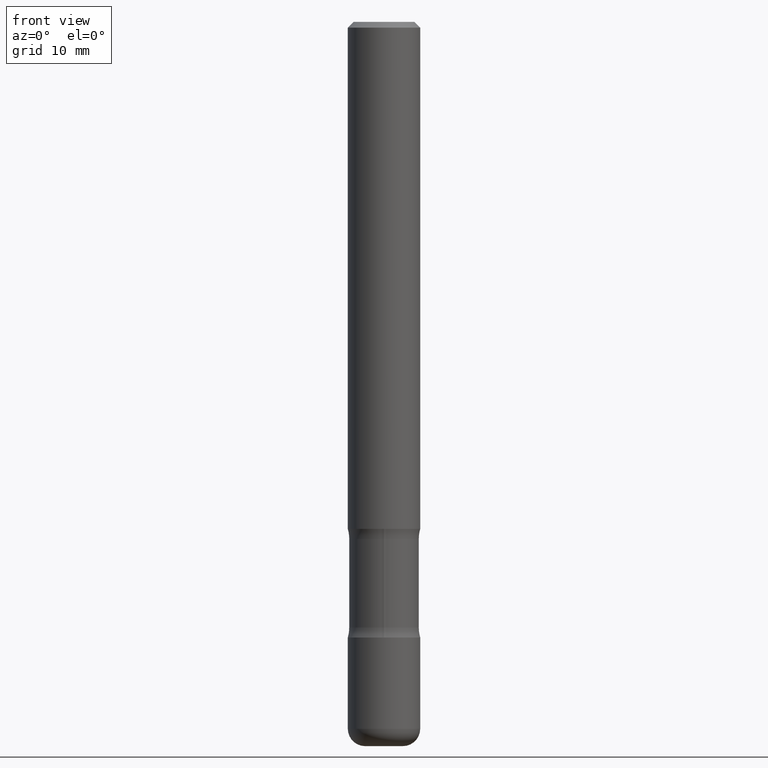
[diagram: clean part render]
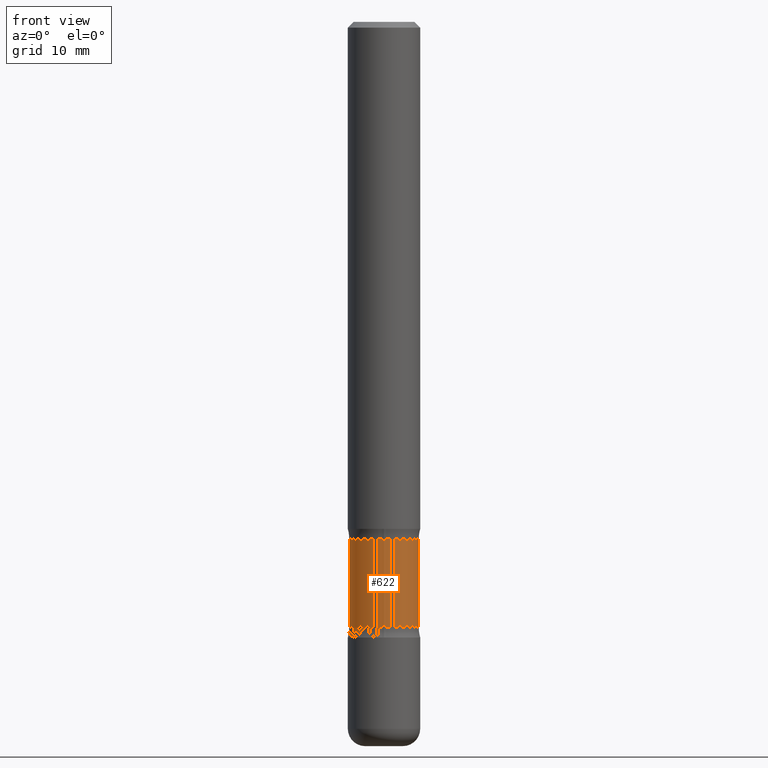
[diagram: same view with one face highlighted and labeled with its STEP entity id]
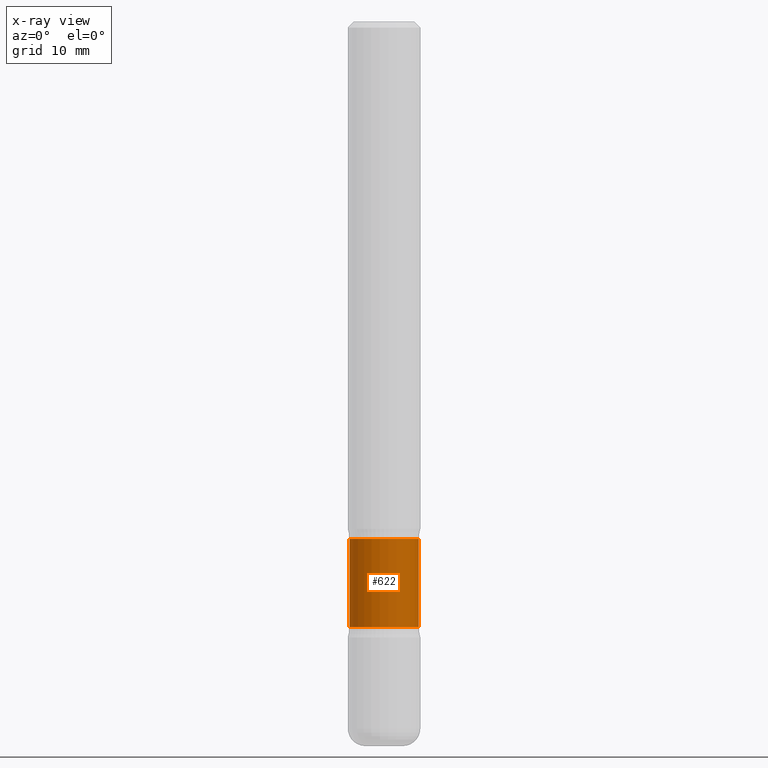
[diagram: x-ray of the same camera — body ghosted, the highlighted face saturated]
A machine part, front view. The second image highlights one B-rep face of the part: STEP entity #622.
The next image is the same camera in x-ray: the body ghosted, the highlighted face saturated — about 0% of this face is hidden behind the body in this view.
In plain terms, the highlighted cylindrical surface (edge-blend (fillet) strip) has radius 3.048 mm, axis along (-0, 0, 1).
Its self-contained STEP definition (entity closure, byte-faithful):
#11 = CARTESIAN_POINT ( 'NONE',  ( 0.1199999999999996764, -8.135151519504520597E-15, -2.089999999999998526 ) ) ;
#18 = CARTESIAN_POINT ( 'NONE',  ( 0.1199999999999996764, -7.070249711157368710E-15, -1.785000000000001252 ) ) ;
#22 = EDGE_CURVE ( 'NONE', #524, #59, #586, .T. ) ;
#42 = DIRECTION ( 'NONE',  ( -2.445468806185136597E-29, 3.491481338843145583E-15, 1.000000000000000000 ) ) ;
#59 = VERTEX_POINT ( 'NONE', #18 ) ;
#79 = DIRECTION ( 'NONE',  ( -2.445468806185136597E-29, 3.491481338843145583E-15, 1.000000000000000000 ) ) ;
#82 = EDGE_CURVE ( 'NONE', #459, #524, #528, .T. ) ;
#90 = LINE ( 'NONE', #741, #541 ) ;
#117 = EDGE_CURVE ( 'NONE', #578, #59, #260, .T. ) ;
#132 = CARTESIAN_POINT ( 'NONE',  ( -0.1199999999999996764, -6.487882070305806315E-15, -2.089999999999998526 ) ) ;
#145 = CARTESIAN_POINT ( 'NONE',  ( 0.1199999999999996764, -6.948047864297855572E-15, -1.750000000000000222 ) ) ;
#150 = CYLINDRICAL_SURFACE ( 'NONE', #457, 0.1199999999999996764 ) ;
#156 = DIRECTION ( 'NONE',  ( -2.445468806185136597E-29, 3.491481338843145583E-15, 1.000000000000000000 ) ) ;
#157 = DIRECTION ( 'NONE',  ( 1.000000000000000000, -6.982962677686261977E-15, 0.000000000000000000 ) ) ;
#193 = ORIENTED_EDGE ( 'NONE', *, *, #22, .T. ) ;
#244 = ORIENTED_EDGE ( 'NONE', *, *, #268, .F. ) ;
#260 = CIRCLE ( 'NONE', #273, 0.1199999999999996764 ) ;
#268 = EDGE_CURVE ( 'NONE', #459, #578, #90, .T. ) ;
#271 = FACE_OUTER_BOUND ( 'NONE', #651, .T. ) ;
#273 = AXIS2_PLACEMENT_3D ( 'NONE', #534, #42, #157 ) ;
#399 = DIRECTION ( 'NONE',  ( 1.000000000000000000, -6.982962677686270655E-15, 0.000000000000000000 ) ) ;
#457 = AXIS2_PLACEMENT_3D ( 'NONE', #649, #156, #399 ) ;
#459 = VERTEX_POINT ( 'NONE', #132 ) ;
#516 = DIRECTION ( 'NONE',  ( -2.445468806185136877E-29, 3.491481338843145188E-15, 1.000000000000000000 ) ) ;
#524 = VERTEX_POINT ( 'NONE', #11 ) ;
#528 = CIRCLE ( 'NONE', #668, 0.1199999999999996764 ) ;
#534 = CARTESIAN_POINT ( 'NONE',  ( 4.365161819040472256E-29, -6.232294189835019387E-15, -1.785000000000001252 ) ) ;
#541 = VECTOR ( 'NONE', #805, 39.37007874015748143 ) ;
#558 = ORIENTED_EDGE ( 'NONE', *, *, #82, .T. ) ;
#578 = VERTEX_POINT ( 'NONE', #710 ) ;
#582 = DIRECTION ( 'NONE',  ( 1.000000000000000000, -6.982962677686270655E-15, 0.000000000000000000 ) ) ;
#586 = LINE ( 'NONE', #145, #759 ) ;
#592 = ORIENTED_EDGE ( 'NONE', *, *, #117, .F. ) ;
#622 = ADVANCED_FACE ( 'NONE', ( #271 ), #150, .T. ) ;
#640 = CARTESIAN_POINT ( 'NONE',  ( 5.111029804926932617E-29, -7.297195998182170485E-15, -2.089999999999998526 ) ) ;
#649 = CARTESIAN_POINT ( 'NONE',  ( 4.279570410823989044E-29, -6.110092342975505460E-15, -1.750000000000000222 ) ) ;
#651 = EDGE_LOOP ( 'NONE', ( #244, #558, #193, #592 ) ) ;
#668 = AXIS2_PLACEMENT_3D ( 'NONE', #640, #79, #582 ) ;
#710 = CARTESIAN_POINT ( 'NONE',  ( -0.1199999999999996902, -5.300778415099141289E-15, -1.785000000000001252 ) ) ;
#741 = CARTESIAN_POINT ( 'NONE',  ( -0.1199999999999996764, -5.257441060063387635E-15, -1.750000000000000222 ) ) ;
#759 = VECTOR ( 'NONE', #516, 39.37007874015748143 ) ;
#805 = DIRECTION ( 'NONE',  ( -2.445468806185136877E-29, 3.491481338843145188E-15, 1.000000000000000000 ) ) ;